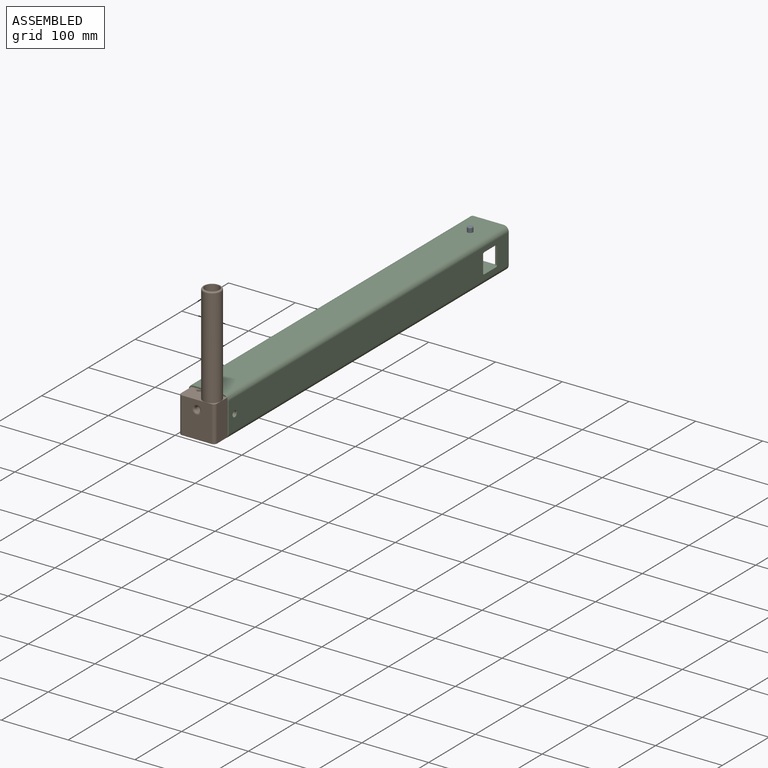
[diagram: assembled view]
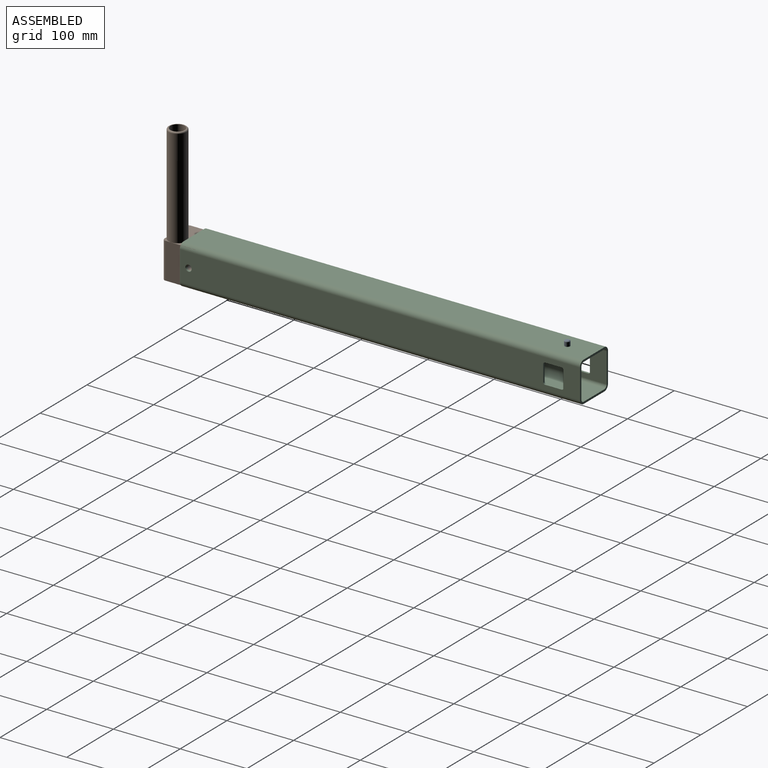
[diagram: assembled view, second angle]
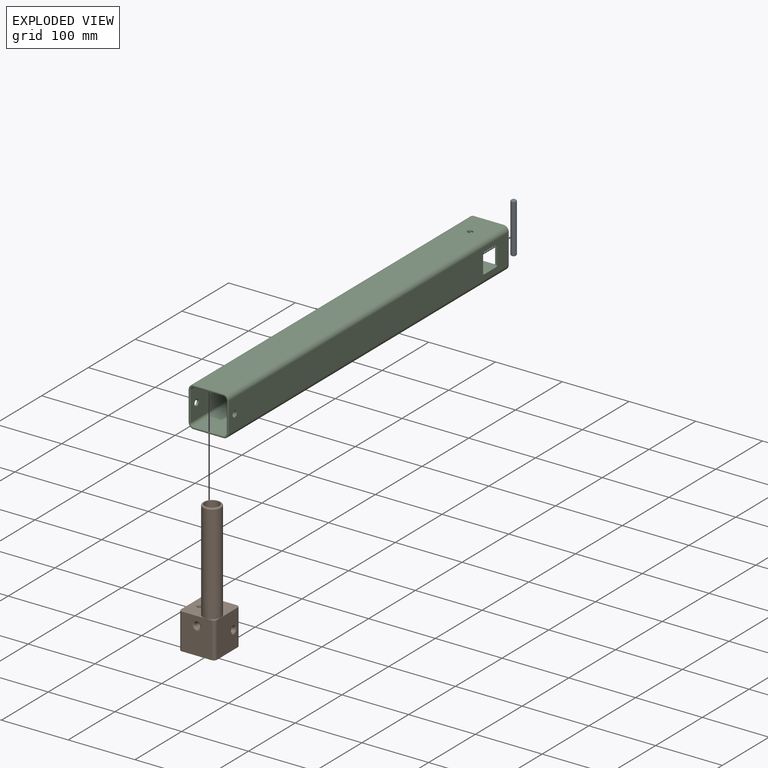
[diagram: exploded view]
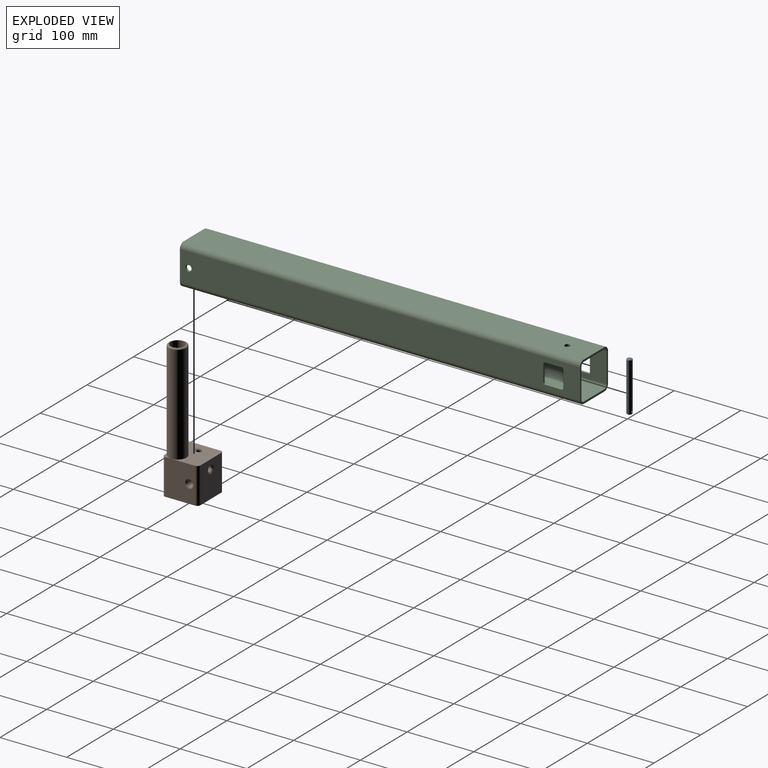
[diagram: exploded view, second angle]
ASSEMBLY  parts=3 mates=2
PART A: 7 faces, bbox 8x8x75 mm
  f0: cylinder r=4mm len=73mm, axis (0,0,-1), area 1827.5mm2, adj f3,f4,f5
  f1: plane 6x6mm, normal (0,0,1), area 28.3mm2, adj f4
  f2: plane 6x6mm, normal (0,0,-1), area 28.3mm2, adj f3
  f3: cone r=4mm half-angle=45deg, axis (0,0,1), area 31.1mm2, adj f0,f2
  f4: cone r=3mm half-angle=45deg, axis (0,0,-1), area 31.1mm2, adj f0,f1
  f5: cylinder r=1.5mm len=4mm, axis (0,-1,0), area 36.3mm2, adj f0,f6
  f6: plane 3x3mm, normal (0,1,0), area 7.1mm2, adj f5
PART B: 41 faces, bbox 55.4x204x55.4 mm
  f0: plane 13.45x13.45mm, normal (0,-1,0), area 34.1mm2, adj f15,f29,f31,f33
  f1: plane 53.8x44.4mm, normal (0,0,1), area 2234.8mm2, adj f2,f8,f21,f33,f37
  f2: cylinder r=4.8mm len=53.8mm, axis (0,1,0), area 405.6mm2, adj f1,f3,f19,f32
  f3: plane 53.8x44.4mm, normal (-1,0,0), area 2234.8mm2, adj f2,f4,f18,f30,f35
  f4: cylinder r=4.8mm len=53.8mm, axis (0,1,0), area 405.6mm2, adj f3,f5,f20,f28
  f5: plane 53.8x44.4mm, normal (0,0,-1), area 2234.8mm2, adj f4,f6,f22,f26,f36
  f6: cylinder r=4.8mm len=53.8mm, axis (0,1,0), area 405.6mm2, adj f5,f7,f24,f27
  f7: plane 53.8x44.4mm, normal (1,0,0), area 2234.8mm2, adj f6,f8,f25,f29,f34
  f8: cylinder r=4.8mm len=53.8mm, axis (0,1,0), area 405.6mm2, adj f1,f7,f23,f31
  f9: plane 53.8x53.8mm, normal (0,-1,0), area 2119.1mm2, adj f15,f26,f27,f28,f29,f30,f32,f33
  f10: plane 53.8x53.8mm, normal (0,1,0), area 2721.5mm2, adj f18,f19,f20,f21,f22,f23,f24,f25
  f11: cylinder r=4mm len=48mm, axis (0,1,0), area 1206.4mm2, adj f38,f39
  f12: cylinder r=4mm len=48mm, axis (0,0,1), area 1206.4mm2, adj f36,f37
  f13: cylinder r=4mm len=48mm, axis (-1,0,0), area 1206.4mm2, adj f34,f35
  f14: cylinder r=10.8mm len=150mm, axis (0,1,0), area 10178.8mm2, adj f16,f17
  f15: cylinder r=13.45mm len=148mm, axis (0,1,0), area 12507.3mm2, adj f0,f9,f40
  f16: plane 22.9x22.9mm, normal (0,-1,0), area 45.4mm2, adj f14,f40
  f17: plane 21.6x21.6mm, normal (0,-1,0), area 366.4mm2, adj f14
  f18: cylinder r=0.1mm len=44.4mm, axis (0,0,-1), area 7mm2, adj f3,f10,f19,f20
  f19: torus R=4.7mm, axis (0,-1,0), area 1.2mm2, adj f2,f10,f18,f21
  f20: torus R=4.7mm, axis (0,-1,0), area 1.2mm2, adj f4,f10,f18,f22
  f21: cylinder r=0.1mm len=44.4mm, axis (-1,0,0), area 7mm2, adj f1,f10,f19,f23
  f22: cylinder r=0.1mm len=44.4mm, axis (1,0,0), area 7mm2, adj f5,f10,f20,f24
  f23: torus R=4.7mm, axis (0,-1,0), area 1.2mm2, adj f8,f10,f21,f25
  f24: torus R=4.7mm, axis (0,-1,0), area 1.2mm2, adj f6,f10,f22,f25
  f25: cylinder r=0.1mm len=44.4mm, axis (0,0,1), area 7mm2, adj f7,f10,f23,f24
  f26: cylinder r=0.1mm len=44.4mm, axis (-1,0,0), area 7mm2, adj f5,f9,f27,f28
  f27: torus R=4.7mm, axis (0,-1,0), area 1.2mm2, adj f6,f9,f26,f29
  f28: torus R=4.7mm, axis (0,-1,0), area 1.2mm2, adj f4,f9,f26,f30
  f29: cylinder r=0.1mm len=44.4mm, axis (0,0,-1), area 7mm2, adj f0,f7,f9,f27,f31
  f30: cylinder r=0.1mm len=44.4mm, axis (0,0,1), area 7mm2, adj f3,f9,f28,f32
  f31: torus R=4.7mm, axis (0,-1,0), area 1.2mm2, adj f0,f8,f29,f33
  f32: torus R=4.7mm, axis (0,-1,0), area 1.2mm2, adj f2,f9,f30,f33
  f33: cylinder r=0.1mm len=44.4mm, axis (1,0,0), area 7mm2, adj f0,f1,f9,f31,f32
  f34: torus R=7mm, axis (1,0,0), area 150.7mm2, adj f7,f13
  f35: torus R=7mm, axis (1,0,0), area 150.7mm2, adj f3,f13
  f36: torus R=7mm, axis (0,0,-1), area 150.7mm2, adj f5,f12
  f37: torus R=7mm, axis (0,0,-1), area 150.7mm2, adj f1,f12
  f38: torus R=7mm, axis (0,-1,0), area 150.7mm2, adj f9,f11
  f39: torus R=7mm, axis (0,-1,0), area 150.7mm2, adj f10,f11
  f40: torus R=11.45mm, axis (0,-1,0), area 251.1mm2, adj f15,f16
PART C: 58 faces, bbox 61.3x600x61.3 mm
  f0: plane 599x44.4mm, normal (-1,0,0), area 25622mm2, adj f5,f6,f17,f23,f28,f40,f41,f42
  f1: plane 599x44.4mm, normal (1,0,0), area 25622mm2, adj f8,f15,f17,f20,f27,f48,f49,f50
  f2: plane 599x44.4mm, normal (-1,0,0), area 25622mm2, adj f11,f12,f17,f21,f35,f48,f49,f50
  f3: plane 599x44.4mm, normal (1,0,0), area 25622mm2, adj f9,f14,f17,f22,f36,f40,f41,f42
  f4: plane 599x44.4mm, normal (0,0,1), area 26545.3mm2, adj f5,f15,f17,f31,f57
  f5: cylinder r=7.8mm len=599mm, axis (0,1,0), area 7339.1mm2, adj f0,f4,f17,f30
  f6: cylinder r=7.8mm len=599mm, axis (0,1,0), area 7339.1mm2, adj f0,f7,f17,f26
  f7: plane 599x44.4mm, normal (0,0,-1), area 26545.3mm2, adj f6,f8,f17,f24,f56
  f8: cylinder r=7.8mm len=599mm, axis (0,1,0), area 7339.1mm2, adj f1,f7,f17,f25
  f9: cylinder r=4.8mm len=599mm, axis (0,1,0), area 4516.4mm2, adj f3,f10,f17,f38
  f10: plane 599x44.4mm, normal (0,0,-1), area 26545.3mm2, adj f9,f11,f17,f39,f57
  f11: cylinder r=4.8mm len=599mm, axis (0,1,0), area 4516.4mm2, adj f2,f10,f17,f37
  f12: cylinder r=4.8mm len=599mm, axis (0,1,0), area 4516.4mm2, adj f2,f13,f17,f33
  f13: plane 599x44.4mm, normal (0,0,1), area 26545.3mm2, adj f12,f14,f17,f32,f56
  f14: cylinder r=4.8mm len=599mm, axis (0,1,0), area 4516.4mm2, adj f3,f13,f17,f34
  f15: cylinder r=7.8mm len=599mm, axis (0,1,0), area 7339.1mm2, adj f1,f4,f17,f29
  f16: plane 58x58mm, normal (0,-1,0), area 217.2mm2, adj f24,f25,f26,f27,f28,f29,f30,f31
  f17: plane 60x60mm, normal (0,1,0), area 651.6mm2, adj f0,f1,f2,f3,f4,f5,f6,f7
  f18: cylinder r=4mm len=8mm, axis (-1,0,0), area 25.1mm2, adj f22,f23
  f19: cylinder r=4mm len=8mm, axis (-1,0,0), area 25.1mm2, adj f20,f21
  f20: torus R=5mm, axis (1,0,0), area 43.1mm2, adj f1,f19
  f21: torus R=5mm, axis (1,0,0), area 43.1mm2, adj f2,f19
  f22: torus R=5mm, axis (1,0,0), area 43.1mm2, adj f3,f18
  f23: torus R=5mm, axis (1,0,0), area 43.1mm2, adj f0,f18
  f24: cylinder r=1mm len=44.4mm, axis (-1,0,0), area 69.7mm2, adj f7,f16,f25,f26
  f25: torus R=6.8mm, axis (0,-1,0), area 18.3mm2, adj f8,f16,f24,f27
  f26: torus R=6.8mm, axis (0,-1,0), area 18.3mm2, adj f6,f16,f24,f28
  f27: cylinder r=1mm len=44.4mm, axis (0,0,-1), area 69.7mm2, adj f1,f16,f25,f29
  f28: cylinder r=1mm len=44.4mm, axis (0,0,1), area 69.7mm2, adj f0,f16,f26,f30
  f29: torus R=6.8mm, axis (0,-1,0), area 18.3mm2, adj f15,f16,f27,f31
  f30: torus R=6.8mm, axis (0,-1,0), area 18.3mm2, adj f5,f16,f28,f31
  f31: cylinder r=1mm len=44.4mm, axis (1,0,0), area 69.7mm2, adj f4,f16,f29,f30
  f32: cylinder r=1mm len=44.4mm, axis (1,0,0), area 69.7mm2, adj f13,f16,f33,f34
  f33: torus R=5.8mm, axis (0,-1,0), area 12.7mm2, adj f12,f16,f32,f35
  f34: torus R=5.8mm, axis (0,-1,0), area 12.7mm2, adj f14,f16,f32,f36
  f35: cylinder r=1mm len=44.4mm, axis (0,0,1), area 69.7mm2, adj f2,f16,f33,f37
  f36: cylinder r=1mm len=44.4mm, axis (0,0,-1), area 69.7mm2, adj f3,f16,f34,f38
  f37: torus R=5.8mm, axis (0,-1,0), area 12.7mm2, adj f11,f16,f35,f39
  f38: torus R=5.8mm, axis (0,-1,0), area 12.7mm2, adj f9,f16,f36,f39
  f39: cylinder r=1mm len=44.4mm, axis (-1,0,0), area 69.7mm2, adj f10,f16,f37,f38
  f40: cylinder r=2.4mm len=3mm, axis (-1,0,0), area 11.3mm2, adj f0,f3,f41,f47
  f41: plane 25.2x3mm, normal (0,0,-1), area 75.6mm2, adj f0,f3,f40,f42
  f42: cylinder r=2.4mm len=3mm, axis (-1,0,0), area 11.3mm2, adj f0,f3,f41,f43
  f43: plane 25.2x3mm, normal (0,1,0), area 75.6mm2, adj f0,f3,f42,f44
  f44: cylinder r=2.4mm len=3mm, axis (-1,0,0), area 11.3mm2, adj f0,f3,f43,f45
  f45: plane 25.2x3mm, normal (0,0,1), area 75.6mm2, adj f0,f3,f44,f46
  f46: cylinder r=2.4mm len=3mm, axis (-1,0,0), area 11.3mm2, adj f0,f3,f45,f47
  f47: plane 25.2x3mm, normal (0,-1,0), area 75.6mm2, adj f0,f3,f40,f46
  f48: plane 25.2x3mm, normal (0,-1,0), area 75.6mm2, adj f1,f2,f49,f55
  f49: cylinder r=2.4mm len=3mm, axis (-1,0,0), area 11.3mm2, adj f1,f2,f48,f50
  f50: plane 25.2x3mm, normal (0,0,1), area 75.6mm2, adj f1,f2,f49,f51
  f51: cylinder r=2.4mm len=3mm, axis (-1,0,0), area 11.3mm2, adj f1,f2,f50,f52
  f52: plane 25.2x3mm, normal (0,1,0), area 75.6mm2, adj f1,f2,f51,f53
  f53: cylinder r=2.4mm len=3mm, axis (-1,0,0), area 11.3mm2, adj f1,f2,f52,f54
  f54: plane 25.2x3mm, normal (0,0,-1), area 75.6mm2, adj f1,f2,f53,f55
  f55: cylinder r=2.4mm len=3mm, axis (-1,0,0), area 11.3mm2, adj f1,f2,f48,f54
  f56: cylinder r=4mm len=8mm, axis (0,0,-1), area 75.4mm2, adj f7,f13
  f57: cylinder r=4mm len=8mm, axis (0,0,-1), area 75.4mm2, adj f4,f10
PLACE A rot(axis=(0,1,0),180deg) t=(0,-40,37.5)mm
PLACE B rot(axis=(-0.58,0.58,-0.58),120deg) t=(1.5,-600,-27)mm
PLACE C at identity
MATE revolute B.f12 <-> C.f23  axis (1,0,0) through (28.5,-586.5,0)mm
MATE revolute A.f0 <-> C.f56  axis (0,0,1) through (0,-40,0)mm
